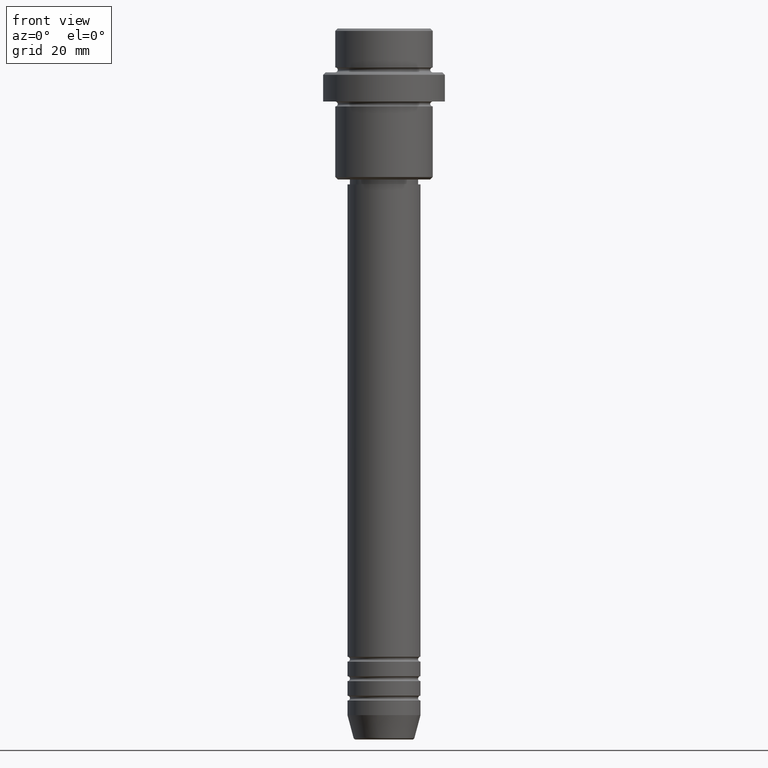
[diagram: clean part render]
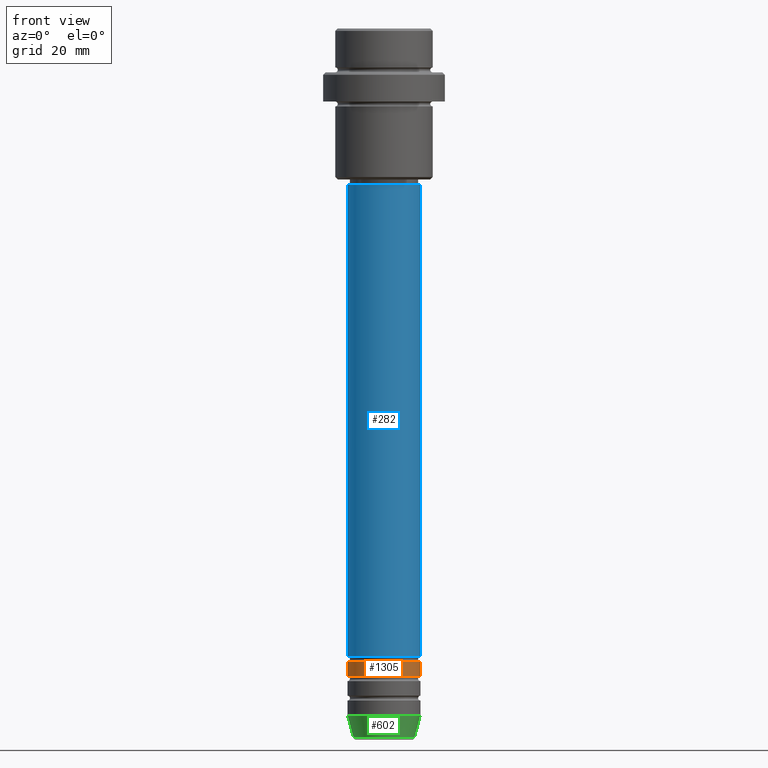
[diagram: same view with three faces highlighted in distinct colors, each labeled with its STEP entity id]
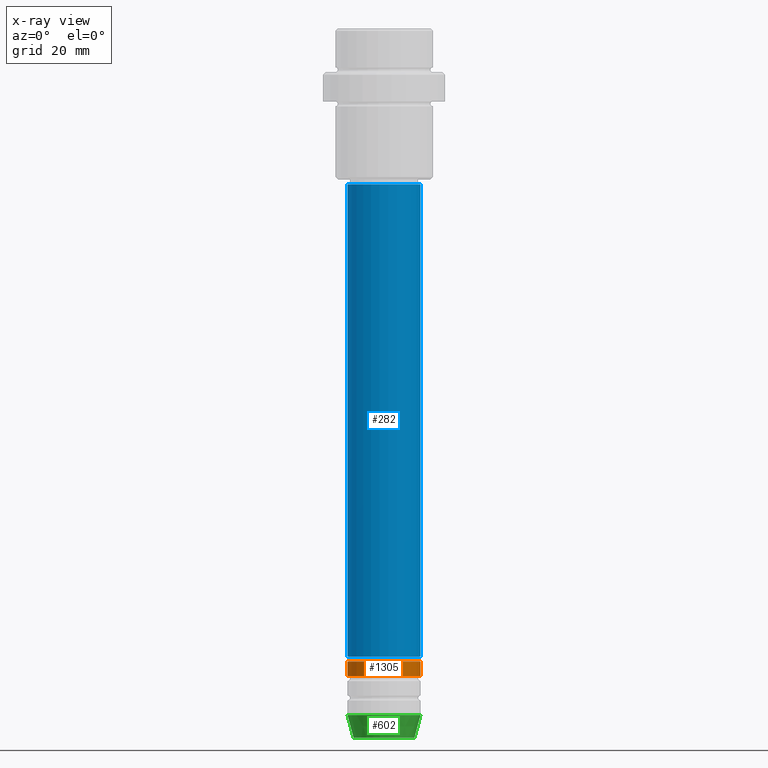
[diagram: x-ray of the same camera — body ghosted, the three highlighted faces saturated]
A machine part, front view with three faces highlighted in distinct colors.
The next image is the same camera in x-ray (body ghosted, the three faces saturated) — at least one of them is partly hidden behind the body in this view.
Their STEP definitions:

[orange] entity #1305 — the highlighted cylindrical surface (edge-blend (fillet) strip) has radius 7.5 mm, axis along (-0, -0, 1).
#6 = DIRECTION ( 'NONE',  ( 1.000000000000000000, 0.000000000000000000, 0.000000000000000000 ) ) ;
#16 = DIRECTION ( 'NONE',  ( -0.000000000000000000, -0.000000000000000000, 1.000000000000000000 ) ) ;
#19 = EDGE_CURVE ( 'NONE', #1186, #638, #1098, .T. ) ;
#23 = VERTEX_POINT ( 'NONE', #861 ) ;
#79 = CARTESIAN_POINT ( 'NONE',  ( -7.500000000000000000, 9.184850993605147944E-16, -132.9999999999998579 ) ) ;
#146 = CARTESIAN_POINT ( 'NONE',  ( 0.000000000000000000, 0.000000000000000000, -129.9999999999998579 ) ) ;
#161 = EDGE_CURVE ( 'NONE', #638, #1273, #460, .T. ) ;
#169 = ORIENTED_EDGE ( 'NONE', *, *, #161, .F. ) ;
#182 = ORIENTED_EDGE ( 'NONE', *, *, #19, .F. ) ;
#228 = FACE_OUTER_BOUND ( 'NONE', #847, .T. ) ;
#320 = CYLINDRICAL_SURFACE ( 'NONE', #767, 7.500000000000000000 ) ;
#340 = CARTESIAN_POINT ( 'NONE',  ( 0.000000000000000000, 0.000000000000000000, -132.9999999999998579 ) ) ;
#386 = ORIENTED_EDGE ( 'NONE', *, *, #645, .T. ) ;
#414 = DIRECTION ( 'NONE',  ( -0.000000000000000000, -0.000000000000000000, 1.000000000000000000 ) ) ;
#453 = DIRECTION ( 'NONE',  ( 1.000000000000000000, 0.000000000000000000, 0.000000000000000000 ) ) ;
#455 = LINE ( 'NONE', #889, #1021 ) ;
#460 = CIRCLE ( 'NONE', #998, 7.500000000000000000 ) ;
#550 = CARTESIAN_POINT ( 'NONE',  ( 7.500000000000000000, 0.000000000000000000, -129.9999999999998579 ) ) ;
#638 = VERTEX_POINT ( 'NONE', #1105 ) ;
#645 = EDGE_CURVE ( 'NONE', #23, #1273, #455, .T. ) ;
#748 = CARTESIAN_POINT ( 'NONE',  ( -7.500000000000000000, 9.184850993605147944E-16, 0.000000000000000000 ) ) ;
#767 = AXIS2_PLACEMENT_3D ( 'NONE', #788, #1109, #453 ) ;
#788 = CARTESIAN_POINT ( 'NONE',  ( 0.000000000000000000, 0.000000000000000000, 0.000000000000000000 ) ) ;
#847 = EDGE_LOOP ( 'NONE', ( #182, #934, #386, #169 ) ) ;
#849 = DIRECTION ( 'NONE',  ( 1.000000000000000000, 0.000000000000000000, 0.000000000000000000 ) ) ;
#861 = CARTESIAN_POINT ( 'NONE',  ( 7.500000000000000000, 0.000000000000000000, -132.9999999999998579 ) ) ;
#889 = CARTESIAN_POINT ( 'NONE',  ( 7.500000000000000000, 0.000000000000000000, 0.000000000000000000 ) ) ;
#931 = EDGE_CURVE ( 'NONE', #1186, #23, #1339, .T. ) ;
#934 = ORIENTED_EDGE ( 'NONE', *, *, #931, .T. ) ;
#990 = DIRECTION ( 'NONE',  ( -0.000000000000000000, -0.000000000000000000, 1.000000000000000000 ) ) ;
#997 = VECTOR ( 'NONE', #414, 1000.000000000000000 ) ;
#998 = AXIS2_PLACEMENT_3D ( 'NONE', #146, #990, #6 ) ;
#1021 = VECTOR ( 'NONE', #1124, 1000.000000000000000 ) ;
#1098 = LINE ( 'NONE', #748, #997 ) ;
#1105 = CARTESIAN_POINT ( 'NONE',  ( -7.500000000000000000, 9.184850993605147944E-16, -129.9999999999998579 ) ) ;
#1109 = DIRECTION ( 'NONE',  ( -0.000000000000000000, -0.000000000000000000, 1.000000000000000000 ) ) ;
#1124 = DIRECTION ( 'NONE',  ( -0.000000000000000000, -0.000000000000000000, 1.000000000000000000 ) ) ;
#1186 = VERTEX_POINT ( 'NONE', #79 ) ;
#1273 = VERTEX_POINT ( 'NONE', #550 ) ;
#1305 = ADVANCED_FACE ( 'NONE', ( #228 ), #320, .T. ) ;
#1339 = CIRCLE ( 'NONE', #1407, 7.500000000000000000 ) ;
#1407 = AXIS2_PLACEMENT_3D ( 'NONE', #340, #16, #849 ) ;

[blue] entity #282 — the highlighted cylindrical surface (edge-blend (fillet) strip) has radius 7.5 mm, axis along (-0, -0, 1).
#14 = CARTESIAN_POINT ( 'NONE',  ( -7.500000000000000000, 9.184850993605147944E-16, -31.99999999999999289 ) ) ;
#63 = CARTESIAN_POINT ( 'NONE',  ( 0.000000000000000000, 0.000000000000000000, 0.000000000000000000 ) ) ;
#95 = CARTESIAN_POINT ( 'NONE',  ( 7.500000000000000000, 0.000000000000000000, 0.000000000000000000 ) ) ;
#117 = CARTESIAN_POINT ( 'NONE',  ( 0.000000000000000000, 0.000000000000000000, -128.9999999999998579 ) ) ;
#144 = CARTESIAN_POINT ( 'NONE',  ( -7.500000000000000000, 9.184850993605147944E-16, 0.000000000000000000 ) ) ;
#165 = AXIS2_PLACEMENT_3D ( 'NONE', #63, #933, #1255 ) ;
#167 = CIRCLE ( 'NONE', #977, 7.500000000000000000 ) ;
#185 = LINE ( 'NONE', #95, #1045 ) ;
#219 = VERTEX_POINT ( 'NONE', #14 ) ;
#242 = CARTESIAN_POINT ( 'NONE',  ( 7.500000000000000000, 0.000000000000000000, -128.9999999999998579 ) ) ;
#282 = ADVANCED_FACE ( 'NONE', ( #1051 ), #379, .T. ) ;
#305 = ORIENTED_EDGE ( 'NONE', *, *, #1150, .T. ) ;
#314 = DIRECTION ( 'NONE',  ( -0.000000000000000000, -0.000000000000000000, 1.000000000000000000 ) ) ;
#379 = CYLINDRICAL_SURFACE ( 'NONE', #165, 7.500000000000000000 ) ;
#469 = CARTESIAN_POINT ( 'NONE',  ( 0.000000000000000000, 0.000000000000000000, -31.99999999999999289 ) ) ;
#516 = EDGE_CURVE ( 'NONE', #1382, #547, #763, .T. ) ;
#547 = VERTEX_POINT ( 'NONE', #242 ) ;
#679 = EDGE_CURVE ( 'NONE', #219, #812, #167, .T. ) ;
#683 = LINE ( 'NONE', #144, #1154 ) ;
#689 = EDGE_CURVE ( 'NONE', #1382, #219, #683, .T. ) ;
#763 = CIRCLE ( 'NONE', #1242, 7.500000000000000000 ) ;
#812 = VERTEX_POINT ( 'NONE', #1415 ) ;
#875 = EDGE_LOOP ( 'NONE', ( #959, #1197, #305, #1367 ) ) ;
#877 = CARTESIAN_POINT ( 'NONE',  ( -7.500000000000000000, 9.184850993605147944E-16, -128.9999999999998579 ) ) ;
#933 = DIRECTION ( 'NONE',  ( -0.000000000000000000, -0.000000000000000000, 1.000000000000000000 ) ) ;
#959 = ORIENTED_EDGE ( 'NONE', *, *, #689, .F. ) ;
#977 = AXIS2_PLACEMENT_3D ( 'NONE', #469, #1168, #1399 ) ;
#1045 = VECTOR ( 'NONE', #314, 1000.000000000000000 ) ;
#1051 = FACE_OUTER_BOUND ( 'NONE', #875, .T. ) ;
#1143 = DIRECTION ( 'NONE',  ( -0.000000000000000000, -0.000000000000000000, 1.000000000000000000 ) ) ;
#1150 = EDGE_CURVE ( 'NONE', #547, #812, #185, .T. ) ;
#1154 = VECTOR ( 'NONE', #1143, 1000.000000000000000 ) ;
#1168 = DIRECTION ( 'NONE',  ( -0.000000000000000000, -0.000000000000000000, 1.000000000000000000 ) ) ;
#1197 = ORIENTED_EDGE ( 'NONE', *, *, #516, .T. ) ;
#1242 = AXIS2_PLACEMENT_3D ( 'NONE', #117, #1320, #1327 ) ;
#1255 = DIRECTION ( 'NONE',  ( 1.000000000000000000, 0.000000000000000000, 0.000000000000000000 ) ) ;
#1320 = DIRECTION ( 'NONE',  ( -0.000000000000000000, -0.000000000000000000, 1.000000000000000000 ) ) ;
#1327 = DIRECTION ( 'NONE',  ( 1.000000000000000000, 0.000000000000000000, 0.000000000000000000 ) ) ;
#1367 = ORIENTED_EDGE ( 'NONE', *, *, #679, .F. ) ;
#1382 = VERTEX_POINT ( 'NONE', #877 ) ;
#1399 = DIRECTION ( 'NONE',  ( 1.000000000000000000, 0.000000000000000000, 0.000000000000000000 ) ) ;
#1415 = CARTESIAN_POINT ( 'NONE',  ( 7.500000000000000000, 0.000000000000000000, -31.99999999999999289 ) ) ;

[green] entity #602 — the highlighted conical surface has half-angle 15 deg.
#3 = ORIENTED_EDGE ( 'NONE', *, *, #323, .T. ) ;
#12 = DIRECTION ( 'NONE',  ( 1.000000000000000000, 0.000000000000000000, 0.000000000000000000 ) ) ;
#48 = AXIS2_PLACEMENT_3D ( 'NONE', #523, #315, #410 ) ;
#113 = LINE ( 'NONE', #790, #461 ) ;
#249 = EDGE_CURVE ( 'NONE', #515, #828, #1047, .T. ) ;
#271 = ORIENTED_EDGE ( 'NONE', *, *, #525, .T. ) ;
#315 = DIRECTION ( 'NONE',  ( -0.000000000000000000, -0.000000000000000000, 1.000000000000000000 ) ) ;
#323 = EDGE_CURVE ( 'NONE', #515, #985, #663, .T. ) ;
#343 = DIRECTION ( 'NONE',  ( -0.000000000000000000, -0.000000000000000000, 1.000000000000000000 ) ) ;
#347 = CIRCLE ( 'NONE', #48, 7.500000000000000000 ) ;
#359 = FACE_OUTER_BOUND ( 'NONE', #582, .T. ) ;
#375 = EDGE_CURVE ( 'NONE', #828, #1243, #347, .T. ) ;
#388 = AXIS2_PLACEMENT_3D ( 'NONE', #1370, #1032, #1159 ) ;
#410 = DIRECTION ( 'NONE',  ( 1.000000000000000000, 0.000000000000000000, 0.000000000000000000 ) ) ;
#461 = VECTOR ( 'NONE', #1216, 1000.000000000000114 ) ;
#512 = CARTESIAN_POINT ( 'NONE',  ( 6.259553456999435106, 0.000000000000000000, -145.6294095225512422 ) ) ;
#515 = VERTEX_POINT ( 'NONE', #551 ) ;
#523 = CARTESIAN_POINT ( 'NONE',  ( 0.000000000000000000, 0.000000000000000000, -141.0000000000000000 ) ) ;
#525 = EDGE_CURVE ( 'NONE', #985, #1243, #113, .T. ) ;
#549 = CARTESIAN_POINT ( 'NONE',  ( -7.500000000000000000, 9.184850993605147944E-16, -141.0000000000000000 ) ) ;
#551 = CARTESIAN_POINT ( 'NONE',  ( -6.259553456999435106, 8.425296549405626528E-16, -145.6294095225512422 ) ) ;
#582 = EDGE_LOOP ( 'NONE', ( #1072, #3, #271, #1263 ) ) ;
#602 = ADVANCED_FACE ( 'NONE', ( #359 ), #804, .T. ) ;
#663 = CIRCLE ( 'NONE', #388, 6.259553456999435106 ) ;
#697 = DIRECTION ( 'NONE',  ( -0.2588190451025227379, 3.169619151431788361E-17, 0.9659258262890676461 ) ) ;
#720 = CARTESIAN_POINT ( 'NONE',  ( -7.500000000000000000, 9.184850993605147944E-16, -141.0000000000000000 ) ) ;
#774 = CARTESIAN_POINT ( 'NONE',  ( 7.500000000000000000, 0.000000000000000000, -141.0000000000000000 ) ) ;
#783 = VECTOR ( 'NONE', #697, 1000.000000000000114 ) ;
#790 = CARTESIAN_POINT ( 'NONE',  ( 7.500000000000000000, 0.000000000000000000, -141.0000000000000000 ) ) ;
#804 = CONICAL_SURFACE ( 'NONE', #857, 7.500000000000000000, 0.2617993877991514617 ) ;
#828 = VERTEX_POINT ( 'NONE', #549 ) ;
#857 = AXIS2_PLACEMENT_3D ( 'NONE', #879, #343, #12 ) ;
#879 = CARTESIAN_POINT ( 'NONE',  ( 0.000000000000000000, 0.000000000000000000, -141.0000000000000000 ) ) ;
#985 = VERTEX_POINT ( 'NONE', #512 ) ;
#1032 = DIRECTION ( 'NONE',  ( -0.000000000000000000, -0.000000000000000000, 1.000000000000000000 ) ) ;
#1047 = LINE ( 'NONE', #720, #783 ) ;
#1072 = ORIENTED_EDGE ( 'NONE', *, *, #249, .F. ) ;
#1159 = DIRECTION ( 'NONE',  ( 1.000000000000000000, 0.000000000000000000, 0.000000000000000000 ) ) ;
#1216 = DIRECTION ( 'NONE',  ( 0.2588190451025227379, 0.000000000000000000, 0.9659258262890676461 ) ) ;
#1243 = VERTEX_POINT ( 'NONE', #774 ) ;
#1263 = ORIENTED_EDGE ( 'NONE', *, *, #375, .F. ) ;
#1370 = CARTESIAN_POINT ( 'NONE',  ( 0.000000000000000000, 0.000000000000000000, -145.6294095225512422 ) ) ;